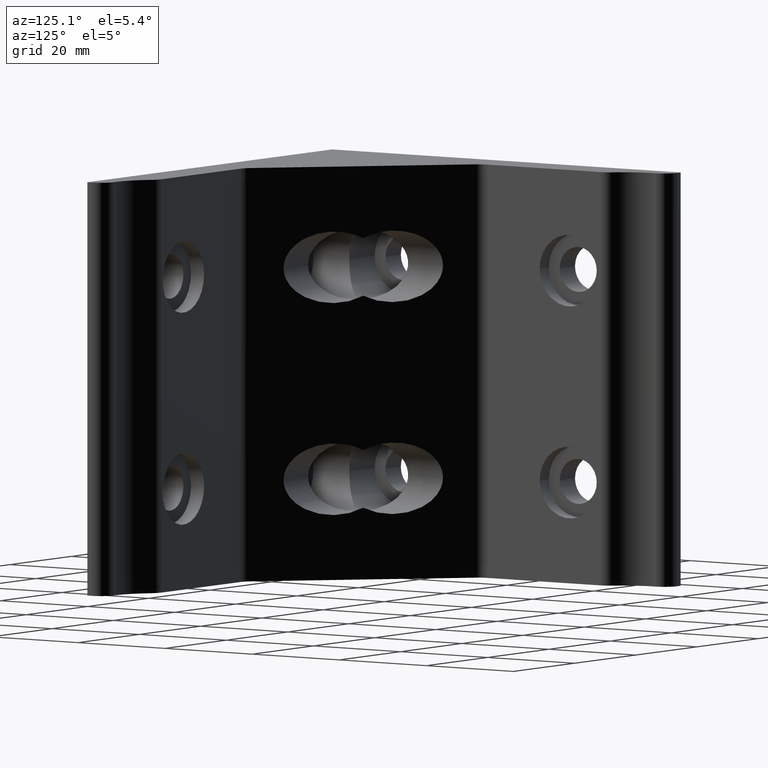
[diagram: clean part render]
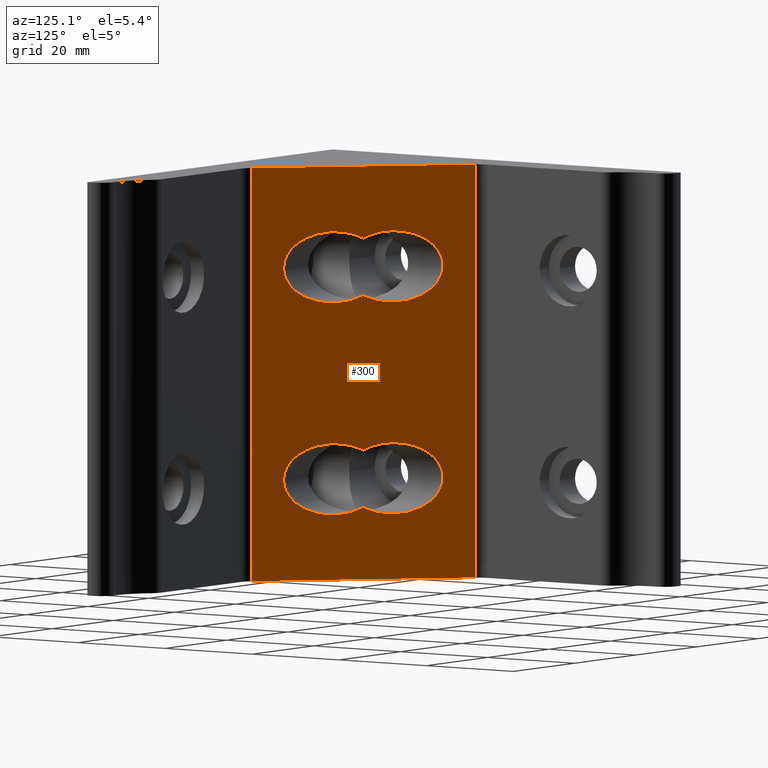
[diagram: same view with one face highlighted and labeled with its STEP entity id]
A machine part, auxiliary view. The second image highlights one B-rep face of the part: STEP entity #300.
In plain terms, the highlighted planar face has unit normal (0.7071, 0.7071, 0).
Its self-contained STEP definition (entity closure, byte-faithful):
#185=CARTESIAN_POINT('',(39.121359767308832,8.878677673410039,-39.0));
#186=VERTEX_POINT('',#185);
#194=CARTESIAN_POINT('',(39.121359767308832,8.878677673410039,39.0));
#195=VERTEX_POINT('',#194);
#196=CARTESIAN_POINT('',(39.121359767308832,8.878677673410039,-39.0));
#197=DIRECTION('',(0.0,0.0,1.0));
#198=VECTOR('',#197,78.0);
#199=LINE('',#196,#198);
#200=EDGE_CURVE('',#186,#195,#199,.T.);
#212=CARTESIAN_POINT('',(39.121359767308832,8.878677673410039,-78.999973803528064));
#213=DIRECTION('',(0.707106781186120,0.707106781186976,0.0));
#214=DIRECTION('',(-0.707106781186976,0.707106781186120,0.0));
#215=AXIS2_PLACEMENT_3D('',#212,#213,#214);
#216=PLANE('',#215);
#217=ORIENTED_EDGE('',*,*,#200,.F.);
#218=CARTESIAN_POINT('',(8.878725800132770,39.121311640549720,-39.0));
#219=VERTEX_POINT('',#218);
#220=CARTESIAN_POINT('',(39.121359767308832,8.878677673410039,-39.0));
#221=DIRECTION('',(-0.707106781186973,0.707106781186122,0.0));
#222=VECTOR('',#221,42.769543118239902);
#223=LINE('',#220,#222);
#224=EDGE_CURVE('',#186,#219,#223,.T.);
#225=ORIENTED_EDGE('',*,*,#224,.T.);
#226=CARTESIAN_POINT('',(8.878725800132770,39.121311640549720,39.0));
#227=VERTEX_POINT('',#226);
#228=CARTESIAN_POINT('',(8.878725800132770,39.121311640549720,-39.0));
#229=DIRECTION('',(0.0,0.0,1.0));
#230=VECTOR('',#229,78.0);
#231=LINE('',#228,#230);
#232=EDGE_CURVE('',#219,#227,#231,.T.);
#233=ORIENTED_EDGE('',*,*,#232,.T.);
#234=CARTESIAN_POINT('',(39.121359767308832,8.878677673410042,39.0));
#235=DIRECTION('',(-0.707106781186976,0.707106781186120,0.0));
#236=VECTOR('',#235,42.769543118240058);
#237=LINE('',#234,#236);
#238=EDGE_CURVE('',#195,#227,#237,.T.);
#239=ORIENTED_EDGE('',*,*,#238,.F.);
#240=EDGE_LOOP('',(#217,#225,#233,#239));
#241=FACE_OUTER_BOUND('',#240,.T.);
#242=CARTESIAN_POINT('',(24.000018716367435,24.000018724322672,14.562882321187011));
#243=VERTEX_POINT('',#242);
#244=CARTESIAN_POINT('',(34.750040387266836,13.249997053447260,20.000004218075901));
#245=VERTEX_POINT('',#244);
#246=CARTESIAN_POINT('',(28.000041880785837,19.999995559920080,20.000004218075901));
#247=DIRECTION('',(-0.707106781186120,-0.707106781186976,0.0));
#248=DIRECTION('',(0.707106781186976,-0.707106781186120,0.0));
#249=AXIS2_PLACEMENT_3D('',#246,#247,#248);
#250=ELLIPSE('',#249,9.545939433857777,6.749998506472821);
#251=EDGE_CURVE('',#243,#245,#250,.T.);
#252=ORIENTED_EDGE('',*,*,#251,.T.);
#253=CARTESIAN_POINT('',(24.000018716538079,24.000018724144866,25.437126115095495));
#254=VERTEX_POINT('',#253);
#255=CARTESIAN_POINT('',(28.000041880785837,19.999995559920080,20.000004218075901));
#256=DIRECTION('',(-0.707106781186120,-0.707106781186976,0.0));
#257=DIRECTION('',(0.707106781186976,-0.707106781186120,0.0));
#258=AXIS2_PLACEMENT_3D('',#255,#256,#257);
#259=ELLIPSE('',#258,9.545939433857777,6.749998506472821);
#260=EDGE_CURVE('',#245,#254,#259,.T.);
#261=ORIENTED_EDGE('',*,*,#260,.T.);
#262=CARTESIAN_POINT('',(19.999995559919970,28.000041880775832,20.000004218075901));
#263=DIRECTION('',(0.707106781186120,0.707106781186976,0.0));
#264=DIRECTION('',(-0.707106781186976,0.707106781186120,0.0));
#265=AXIS2_PLACEMENT_3D('',#262,#263,#264);
#266=ELLIPSE('',#265,9.545939426775389,6.749998501472987);
#267=EDGE_CURVE('',#243,#254,#266,.T.);
#268=ORIENTED_EDGE('',*,*,#267,.F.);
#269=EDGE_LOOP('',(#252,#261,#268));
#270=FACE_BOUND('',#269,.T.);
#271=CARTESIAN_POINT('',(24.000018716367435,24.000018724322672,-25.437108798652918));
#272=VERTEX_POINT('',#271);
#273=CARTESIAN_POINT('',(34.750040387266836,13.249997053447260,-19.999986901764032));
#274=VERTEX_POINT('',#273);
#275=CARTESIAN_POINT('',(28.000041880785837,19.999995559920080,-19.999986901764032));
#276=DIRECTION('',(-0.707106781186120,-0.707106781186976,0.0));
#277=DIRECTION('',(0.707106781186976,-0.707106781186120,0.0));
#278=AXIS2_PLACEMENT_3D('',#275,#276,#277);
#279=ELLIPSE('',#278,9.545939433857777,6.749998506472821);
#280=EDGE_CURVE('',#272,#274,#279,.T.);
#281=ORIENTED_EDGE('',*,*,#280,.T.);
#282=CARTESIAN_POINT('',(24.000018716538079,24.000018724144866,-14.562865004744438));
#283=VERTEX_POINT('',#282);
#284=CARTESIAN_POINT('',(28.000041880785837,19.999995559920080,-19.999986901764032));
#285=DIRECTION('',(-0.707106781186120,-0.707106781186976,0.0));
#286=DIRECTION('',(0.707106781186976,-0.707106781186120,0.0));
#287=AXIS2_PLACEMENT_3D('',#284,#285,#286);
#288=ELLIPSE('',#287,9.545939433857777,6.749998506472821);
#289=EDGE_CURVE('',#274,#283,#288,.T.);
#290=ORIENTED_EDGE('',*,*,#289,.T.);
#291=CARTESIAN_POINT('',(19.999995559919970,28.000041880775832,-19.999986901764032));
#292=DIRECTION('',(0.707106781186120,0.707106781186976,0.0));
#293=DIRECTION('',(-0.707106781186976,0.707106781186120,0.0));
#294=AXIS2_PLACEMENT_3D('',#291,#292,#293);
#295=ELLIPSE('',#294,9.545939426775389,6.749998501472987);
#296=EDGE_CURVE('',#272,#283,#295,.T.);
#297=ORIENTED_EDGE('',*,*,#296,.F.);
#298=EDGE_LOOP('',(#281,#290,#297));
#299=FACE_BOUND('',#298,.T.);
#300=ADVANCED_FACE('',(#241,#270,#299),#216,.T.);